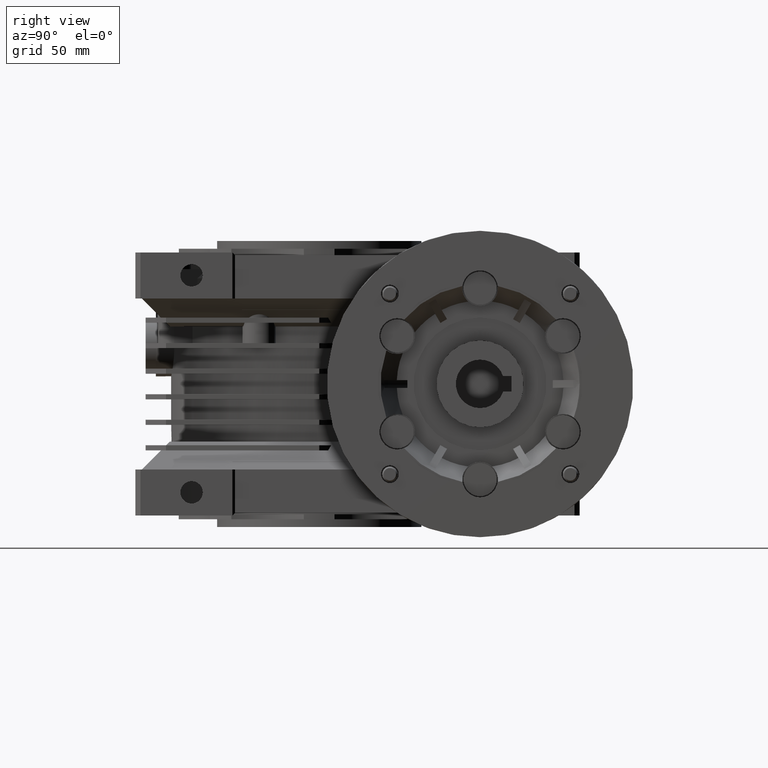
[diagram: clean part render]
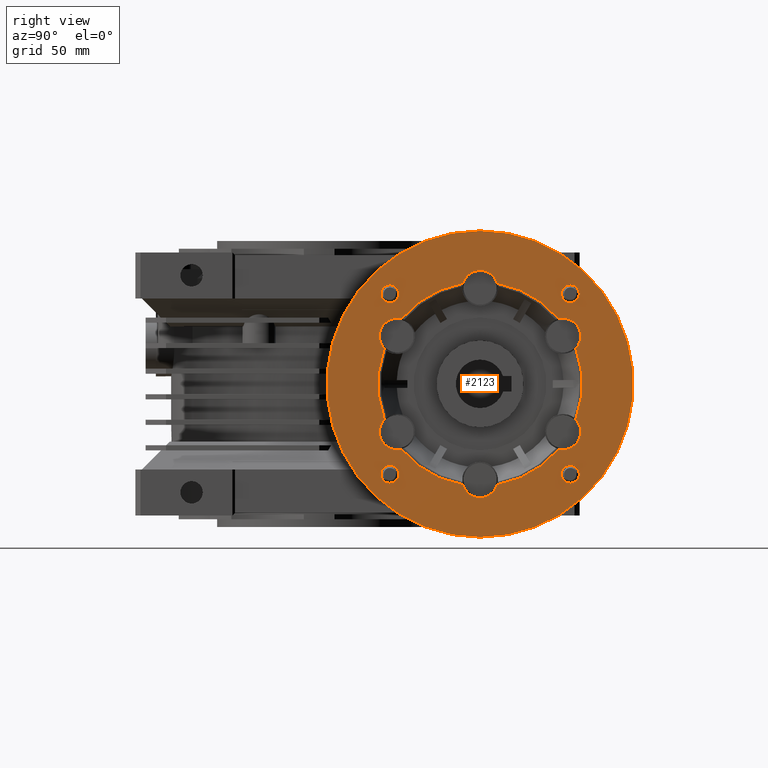
[diagram: same view with one face highlighted and labeled with its STEP entity id]
A machine part, right view. The second image highlights one B-rep face of the part: STEP entity #2123.
In plain terms, the highlighted planar face has unit normal (-1, 0, 0).
Its self-contained STEP definition (entity closure, byte-faithful):
#221 = CARTESIAN_POINT ( 'NONE',  ( 95.00000000000000000, 30.52404735808350011, 18.75000000000000000 ) ) ;
#666 = EDGE_CURVE ( 'NONE', #35912, #3638, #38942, .T. ) ;
#673 = EDGE_CURVE ( 'NONE', #39535, #11094, #6683, .T. ) ;
#696 = VERTEX_POINT ( 'NONE', #35260 ) ;
#842 = CARTESIAN_POINT ( 'NONE',  ( 95.00000000000000000, 27.64466094067254787, -35.35533905932929599 ) ) ;
#877 = DIRECTION ( 'NONE',  ( 1.000000000000000000, 0.000000000000000000, 0.000000000000000000 ) ) ;
#1205 = EDGE_CURVE ( 'NONE', #8564, #21819, #1447, .T. ) ;
#1235 = CARTESIAN_POINT ( 'NONE',  ( 95.00000000000000000, 98.35533905932729226, -35.35533905932745569 ) ) ;
#1238 = ORIENTED_EDGE ( 'NONE', *, *, #23950, .F. ) ;
#1447 = CIRCLE ( 'NONE', #5187, 40.00000000000000000 ) ;
#1826 = CARTESIAN_POINT ( 'NONE',  ( 95.00000000000000000, 27.64466094067070046, 35.35533905932544485 ) ) ;
#2123 = ADVANCED_FACE ( 'NONE', ( #27807, #32259, #35134, #38640, #17712, #6473 ), #28496, .F. ) ;
#2411 = CIRCLE ( 'NONE', #12105, 6.980000000000000426 ) ;
#3286 = CARTESIAN_POINT ( 'NONE',  ( 95.00000000000000000, 69.70679476516291118, 39.43372800000000211 ) ) ;
#3370 = AXIS2_PLACEMENT_3D ( 'NONE', #4584, #21753, #14448 ) ;
#3430 = CIRCLE ( 'NONE', #46158, 3.500000000002147171 ) ;
#3459 = AXIS2_PLACEMENT_3D ( 'NONE', #36403, #15240, #26275 ) ;
#3610 = CARTESIAN_POINT ( 'NONE',  ( 95.00000000000000000, 93.79721283134431076, 25.52511864459950175 ) ) ;
#3638 = VERTEX_POINT ( 'NONE', #15618 ) ;
#3765 = AXIS2_PLACEMENT_3D ( 'NONE', #13459, #42606, #13928 ) ;
#4121 = VERTEX_POINT ( 'NONE', #20230 ) ;
#4180 = CIRCLE ( 'NONE', #3459, 6.980000000000000426 ) ;
#4584 = CARTESIAN_POINT ( 'NONE',  ( 95.00000000000000000, 27.64466094067070046, 35.35533905932544485 ) ) ;
#5089 = DIRECTION ( 'NONE',  ( 1.000000000000000000, 0.000000000000000000, 0.000000000000000000 ) ) ;
#5187 = AXIS2_PLACEMENT_3D ( 'NONE', #33043, #877, #15170 ) ;
#5372 = CIRCLE ( 'NONE', #17397, 6.980000000000000426 ) ;
#5548 = EDGE_LOOP ( 'NONE', ( #15098, #20117 ) ) ;
#5630 = CARTESIAN_POINT ( 'NONE',  ( 95.00000000000000000, 25.49599240349279938, -13.90860935540045951 ) ) ;
#5686 = EDGE_CURVE ( 'NONE', #36456, #10763, #15268, .T. ) ;
#5832 = VERTEX_POINT ( 'NONE', #27195 ) ;
#5835 = AXIS2_PLACEMENT_3D ( 'NONE', #30579, #12687, #44889 ) ;
#6020 = DIRECTION ( 'NONE',  ( 0.000000000000000000, 0.000000000000000000, -1.000000000000000000 ) ) ;
#6115 = ORIENTED_EDGE ( 'NONE', *, *, #32455, .F. ) ;
#6122 = VERTEX_POINT ( 'NONE', #44204 ) ;
#6150 = AXIS2_PLACEMENT_3D ( 'NONE', #23211, #11899, #44816 ) ;
#6472 = AXIS2_PLACEMENT_3D ( 'NONE', #19267, #15251, #11501 ) ;
#6473 = FACE_OUTER_BOUND ( 'NONE', #5548, .T. ) ;
#6683 = CIRCLE ( 'NONE', #28419, 6.980000000000000426 ) ;
#6937 = ORIENTED_EDGE ( 'NONE', *, *, #10052, .F. ) ;
#7176 = CIRCLE ( 'NONE', #6472, 40.00000000000000000 ) ;
#7322 = DIRECTION ( 'NONE',  ( 1.000000000000000000, 0.000000000000000000, 0.000000000000000000 ) ) ;
#7582 = EDGE_CURVE ( 'NONE', #37058, #39535, #7176, .T. ) ;
#8200 = VERTEX_POINT ( 'NONE', #44917 ) ;
#8286 = VERTEX_POINT ( 'NONE', #23788 ) ;
#8336 = VERTEX_POINT ( 'NONE', #42332 ) ;
#8475 = DIRECTION ( 'NONE',  ( 1.000000000000000000, 0.000000000000000000, 0.000000000000000000 ) ) ;
#8564 = VERTEX_POINT ( 'NONE', #30047 ) ;
#8683 = CIRCLE ( 'NONE', #32714, 6.980000000000000426 ) ;
#9693 = EDGE_LOOP ( 'NONE', ( #1238, #42240 ) ) ;
#10000 = EDGE_CURVE ( 'NONE', #21819, #31890, #4180, .T. ) ;
#10052 = EDGE_CURVE ( 'NONE', #19549, #5832, #8683, .T. ) ;
#10274 = VERTEX_POINT ( 'NONE', #3286 ) ;
#10319 = DIRECTION ( 'NONE',  ( 1.000000000000000000, 0.000000000000000000, 0.000000000000000000 ) ) ;
#10329 = EDGE_CURVE ( 'NONE', #10274, #4121, #18502, .T. ) ;
#10600 = CIRCLE ( 'NONE', #6150, 3.500000000002147171 ) ;
#10672 = DIRECTION ( 'NONE',  ( 0.000000000000000000, 0.000000000000000000, -1.000000000000000000 ) ) ;
#10722 = AXIS2_PLACEMENT_3D ( 'NONE', #1235, #8475, #26322 ) ;
#10725 = DIRECTION ( 'NONE',  ( 0.000000000000000000, 0.000000000000000000, 1.000000000000000000 ) ) ;
#10763 = VERTEX_POINT ( 'NONE', #14838 ) ;
#11094 = VERTEX_POINT ( 'NONE', #21626 ) ;
#11163 = ORIENTED_EDGE ( 'NONE', *, *, #10329, .F. ) ;
#11501 = DIRECTION ( 'NONE',  ( 0.000000000000000000, 0.000000000000000000, 1.000000000000000000 ) ) ;
#11770 = EDGE_CURVE ( 'NONE', #18151, #36456, #32711, .T. ) ;
#11899 = DIRECTION ( 'NONE',  ( 1.000000000000000000, 0.000000000000000000, 0.000000000000000000 ) ) ;
#12072 = AXIS2_PLACEMENT_3D ( 'NONE', #17361, #46433, #10725 ) ;
#12105 = AXIS2_PLACEMENT_3D ( 'NONE', #25019, #42646, #10672 ) ;
#12320 = DIRECTION ( 'NONE',  ( 1.000000000000000000, 0.000000000000000000, 0.000000000000000000 ) ) ;
#12321 = VERTEX_POINT ( 'NONE', #45676 ) ;
#12443 = CIRCLE ( 'NONE', #39447, 40.00000000000000000 ) ;
#12654 = DIRECTION ( 'NONE',  ( 0.000000000000000000, 0.000000000000000000, -1.000000000000000000 ) ) ;
#12687 = DIRECTION ( 'NONE',  ( -1.000000000000000000, 0.000000000000000000, 0.000000000000000000 ) ) ;
#12789 = AXIS2_PLACEMENT_3D ( 'NONE', #38113, #20499, #13402 ) ;
#13088 = CARTESIAN_POINT ( 'NONE',  ( 95.00000000000000000, 63.00000000000000000, 0.000000000000000000 ) ) ;
#13402 = DIRECTION ( 'NONE',  ( 0.000000000000000000, 0.000000000000000000, -1.000000000000000000 ) ) ;
#13459 = CARTESIAN_POINT ( 'NONE',  ( 95.00000000000000000, 128.0000000000000000, 0.000000000000000000 ) ) ;
#13663 = ORIENTED_EDGE ( 'NONE', *, *, #11770, .F. ) ;
#13928 = DIRECTION ( 'NONE',  ( 0.000000000000000000, 0.000000000000000000, 1.000000000000000000 ) ) ;
#14287 = EDGE_CURVE ( 'NONE', #4121, #35912, #29246, .T. ) ;
#14448 = DIRECTION ( 'NONE',  ( 0.000000000000000000, 0.000000000000000000, -1.000000000000000000 ) ) ;
#14494 = CARTESIAN_POINT ( 'NONE',  ( 95.00000000000000000, 63.00000000000000000, 37.50000000000000000 ) ) ;
#14578 = DIRECTION ( 'NONE',  ( 0.000000000000000000, 1.734723475976807094E-15, 1.000000000000000000 ) ) ;
#14737 = EDGE_CURVE ( 'NONE', #6122, #14757, #41324, .T. ) ;
#14757 = VERTEX_POINT ( 'NONE', #35075 ) ;
#14838 = CARTESIAN_POINT ( 'NONE',  ( 95.00000000000000000, 69.70679476516281170, -39.43372800000000211 ) ) ;
#15098 = ORIENTED_EDGE ( 'NONE', *, *, #20862, .F. ) ;
#15170 = DIRECTION ( 'NONE',  ( 0.000000000000000000, 1.040834085586084257E-15, 1.000000000000000000 ) ) ;
#15240 = DIRECTION ( 'NONE',  ( 1.000000000000000000, 0.000000000000000000, 0.000000000000000000 ) ) ;
#15251 = DIRECTION ( 'NONE',  ( 1.000000000000000000, 0.000000000000000000, 0.000000000000000000 ) ) ;
#15259 = EDGE_CURVE ( 'NONE', #3638, #37058, #5372, .T. ) ;
#15268 = CIRCLE ( 'NONE', #31064, 6.980000000000000426 ) ;
#15372 = EDGE_CURVE ( 'NONE', #12321, #38858, #10600, .T. ) ;
#15503 = ORIENTED_EDGE ( 'NONE', *, *, #10000, .F. ) ;
#15618 = CARTESIAN_POINT ( 'NONE',  ( 95.00000000000000000, 30.52404735808350011, 25.73000000000000043 ) ) ;
#15624 = DIRECTION ( 'NONE',  ( 0.000000000000000000, 0.000000000000000000, -1.000000000000000000 ) ) ;
#15685 = VERTEX_POINT ( 'NONE', #28789 ) ;
#15949 = CARTESIAN_POINT ( 'NONE',  ( 95.00000000000000000, 95.47595264191639330, -18.75000000000000000 ) ) ;
#16048 = CARTESIAN_POINT ( 'NONE',  ( 95.00000000000000000, 32.20278716865569635, -25.52511864459950175 ) ) ;
#16321 = CARTESIAN_POINT ( 'NONE',  ( 95.00000000000000000, 63.00000000000000000, -60.00000000000000000 ) ) ;
#16786 = AXIS2_PLACEMENT_3D ( 'NONE', #41022, #12320, #15624 ) ;
#17249 = CARTESIAN_POINT ( 'NONE',  ( 95.00000000000000000, 56.29320523483710303, -39.43372800000000211 ) ) ;
#17361 = CARTESIAN_POINT ( 'NONE',  ( 95.00000000000000000, 63.00000000000000000, 0.000000000000000000 ) ) ;
#17397 = AXIS2_PLACEMENT_3D ( 'NONE', #221, #21811, #33082 ) ;
#17527 = DIRECTION ( 'NONE',  ( 0.000000000000000000, 0.000000000000000000, -1.000000000000000000 ) ) ;
#17623 = AXIS2_PLACEMENT_3D ( 'NONE', #13088, #20184, #20651 ) ;
#17712 = FACE_BOUND ( 'NONE', #18263, .T. ) ;
#17896 = ORIENTED_EDGE ( 'NONE', *, *, #15372, .F. ) ;
#17924 = VERTEX_POINT ( 'NONE', #3610 ) ;
#18151 = VERTEX_POINT ( 'NONE', #17249 ) ;
#18263 = EDGE_LOOP ( 'NONE', ( #17896, #34806 ) ) ;
#18384 = ORIENTED_EDGE ( 'NONE', *, *, #20105, .F. ) ;
#18502 = CIRCLE ( 'NONE', #31984, 6.980000000000000426 ) ;
#18556 = DIRECTION ( 'NONE',  ( 1.000000000000000000, 0.000000000000000000, 0.000000000000000000 ) ) ;
#19235 = VERTEX_POINT ( 'NONE', #16321 ) ;
#19237 = AXIS2_PLACEMENT_3D ( 'NONE', #41767, #31874, #42220 ) ;
#19267 = CARTESIAN_POINT ( 'NONE',  ( 95.00000000000000000, 63.00000000000000000, 0.000000000000000000 ) ) ;
#19272 = AXIS2_PLACEMENT_3D ( 'NONE', #1826, #5089, #30211 ) ;
#19391 = DIRECTION ( 'NONE',  ( 0.000000000000000000, 0.000000000000000000, -1.000000000000000000 ) ) ;
#19421 = CARTESIAN_POINT ( 'NONE',  ( 95.00000000000000000, 25.49599240349284912, 13.90860935540045951 ) ) ;
#19549 = VERTEX_POINT ( 'NONE', #28937 ) ;
#19621 = DIRECTION ( 'NONE',  ( 0.000000000000000000, 0.000000000000000000, 1.000000000000000000 ) ) ;
#19735 = CARTESIAN_POINT ( 'NONE',  ( 95.00000000000000000, 95.47595264191639330, -18.75000000000000000 ) ) ;
#19906 = CIRCLE ( 'NONE', #24391, 6.980000000000000426 ) ;
#20105 = EDGE_CURVE ( 'NONE', #5832, #8564, #19906, .T. ) ;
#20117 = ORIENTED_EDGE ( 'NONE', *, *, #46131, .F. ) ;
#20184 = DIRECTION ( 'NONE',  ( 1.000000000000000000, 0.000000000000000000, 0.000000000000000000 ) ) ;
#20230 = CARTESIAN_POINT ( 'NONE',  ( 95.00000000000000000, 56.29320523483710303, 39.43372800000000211 ) ) ;
#20499 = DIRECTION ( 'NONE',  ( 1.000000000000000000, 0.000000000000000000, 0.000000000000000000 ) ) ;
#20526 = CIRCLE ( 'NONE', #10722, 3.500000000000003109 ) ;
#20639 = CIRCLE ( 'NONE', #3370, 3.500000000001488143 ) ;
#20651 = DIRECTION ( 'NONE',  ( 0.000000000000000000, -1.734723475976807094E-15, 1.000000000000000000 ) ) ;
#20862 = EDGE_CURVE ( 'NONE', #19235, #696, #42336, .T. ) ;
#20925 = DIRECTION ( 'NONE',  ( 0.000000000000000000, 0.000000000000000000, -1.000000000000000000 ) ) ;
#20936 = DIRECTION ( 'NONE',  ( 1.000000000000000000, 0.000000000000000000, 0.000000000000000000 ) ) ;
#21292 = EDGE_CURVE ( 'NONE', #8200, #15685, #20639, .T. ) ;
#21626 = CARTESIAN_POINT ( 'NONE',  ( 95.00000000000000000, 30.52404735808350011, -25.73000000000000043 ) ) ;
#21753 = DIRECTION ( 'NONE',  ( 1.000000000000000000, 0.000000000000000000, 0.000000000000000000 ) ) ;
#21811 = DIRECTION ( 'NONE',  ( 1.000000000000000000, 0.000000000000000000, 0.000000000000000000 ) ) ;
#21819 = VERTEX_POINT ( 'NONE', #39764 ) ;
#22108 = CARTESIAN_POINT ( 'NONE',  ( 95.00000000000000000, 63.00000000000000000, 0.000000000000000000 ) ) ;
#22574 = ORIENTED_EDGE ( 'NONE', *, *, #14287, .F. ) ;
#23135 = CARTESIAN_POINT ( 'NONE',  ( 95.00000000000000000, 63.00000000000000000, 0.000000000000000000 ) ) ;
#23211 = CARTESIAN_POINT ( 'NONE',  ( 95.00000000000000000, 98.35533905932540222, 35.35533905932729937 ) ) ;
#23553 = CIRCLE ( 'NONE', #16786, 3.500000000000003109 ) ;
#23788 = CARTESIAN_POINT ( 'NONE',  ( 95.00000000000000000, 98.35533905932729226, -31.85533905932744858 ) ) ;
#23950 = EDGE_CURVE ( 'NONE', #14757, #6122, #34352, .T. ) ;
#24391 = AXIS2_PLACEMENT_3D ( 'NONE', #19735, #30291, #12654 ) ;
#24666 = CARTESIAN_POINT ( 'NONE',  ( 95.00000000000000000, 30.52404735808350011, 18.75000000000000000 ) ) ;
#24674 = AXIS2_PLACEMENT_3D ( 'NONE', #24666, #10319, #45804 ) ;
#24829 = ORIENTED_EDGE ( 'NONE', *, *, #5686, .F. ) ;
#25019 = CARTESIAN_POINT ( 'NONE',  ( 95.00000000000000000, 95.47595264191649278, 18.75000000000000000 ) ) ;
#25306 = CIRCLE ( 'NONE', #32789, 6.980000000000000426 ) ;
#25456 = ORIENTED_EDGE ( 'NONE', *, *, #21292, .F. ) ;
#25471 = CARTESIAN_POINT ( 'NONE',  ( 95.00000000000000000, 63.00000000000000000, -44.47999999999999687 ) ) ;
#26226 = EDGE_LOOP ( 'NONE', ( #27543, #25456 ) ) ;
#26275 = DIRECTION ( 'NONE',  ( 0.000000000000000000, 0.000000000000000000, -1.000000000000000000 ) ) ;
#26322 = DIRECTION ( 'NONE',  ( 0.000000000000000000, 0.000000000000000000, -1.000000000000000000 ) ) ;
#26486 = DIRECTION ( 'NONE',  ( 0.000000000000000000, 0.000000000000000000, -1.000000000000000000 ) ) ;
#26930 = CARTESIAN_POINT ( 'NONE',  ( 95.00000000000000000, 98.35533905932540222, 35.35533905932729937 ) ) ;
#27195 = CARTESIAN_POINT ( 'NONE',  ( 95.00000000000000000, 95.47595264191639330, -25.73000000000000043 ) ) ;
#27543 = ORIENTED_EDGE ( 'NONE', *, *, #39889, .F. ) ;
#27620 = DIRECTION ( 'NONE',  ( 1.000000000000000000, 0.000000000000000000, 0.000000000000000000 ) ) ;
#27807 = FACE_BOUND ( 'NONE', #37298, .T. ) ;
#28419 = AXIS2_PLACEMENT_3D ( 'NONE', #41833, #20936, #31266 ) ;
#28496 = PLANE ( 'NONE',  #3765 ) ;
#28789 = CARTESIAN_POINT ( 'NONE',  ( 95.00000000000000000, 27.64466094067070046, 31.85533905932395982 ) ) ;
#28937 = CARTESIAN_POINT ( 'NONE',  ( 95.00000000000000000, 93.79721283134431076, -25.52511864459955149 ) ) ;
#29246 = CIRCLE ( 'NONE', #44235, 40.00000000000000000 ) ;
#29299 = DIRECTION ( 'NONE',  ( 1.000000000000000000, 0.000000000000000000, 0.000000000000000000 ) ) ;
#30047 = CARTESIAN_POINT ( 'NONE',  ( 95.00000000000000000, 100.5040075965072077, -13.90860935540050036 ) ) ;
#30211 = DIRECTION ( 'NONE',  ( 0.000000000000000000, 0.000000000000000000, -1.000000000000000000 ) ) ;
#30291 = DIRECTION ( 'NONE',  ( 1.000000000000000000, 0.000000000000000000, 0.000000000000000000 ) ) ;
#30576 = EDGE_CURVE ( 'NONE', #8286, #8336, #20526, .T. ) ;
#30579 = CARTESIAN_POINT ( 'NONE',  ( 95.00000000000000000, 63.00000000000000000, 0.000000000000000000 ) ) ;
#30614 = DIRECTION ( 'NONE',  ( -1.000000000000000000, 0.000000000000000000, 0.000000000000000000 ) ) ;
#31064 = AXIS2_PLACEMENT_3D ( 'NONE', #33304, #29299, #26486 ) ;
#31266 = DIRECTION ( 'NONE',  ( 0.000000000000000000, 0.000000000000000000, -1.000000000000000000 ) ) ;
#31279 = EDGE_CURVE ( 'NONE', #8336, #8286, #23553, .T. ) ;
#31744 = EDGE_CURVE ( 'NONE', #10763, #19549, #38380, .T. ) ;
#31844 = ORIENTED_EDGE ( 'NONE', *, *, #43686, .F. ) ;
#31874 = DIRECTION ( 'NONE',  ( 1.000000000000000000, 0.000000000000000000, 0.000000000000000000 ) ) ;
#31890 = VERTEX_POINT ( 'NONE', #35111 ) ;
#31984 = AXIS2_PLACEMENT_3D ( 'NONE', #14494, #43166, #39639 ) ;
#32011 = ORIENTED_EDGE ( 'NONE', *, *, #673, .F. ) ;
#32018 = CIRCLE ( 'NONE', #19272, 3.500000000001488143 ) ;
#32259 = FACE_BOUND ( 'NONE', #45931, .T. ) ;
#32455 = EDGE_CURVE ( 'NONE', #31890, #17924, #2411, .T. ) ;
#32711 = CIRCLE ( 'NONE', #19237, 6.980000000000000426 ) ;
#32714 = AXIS2_PLACEMENT_3D ( 'NONE', #15949, #18556, #33588 ) ;
#32789 = AXIS2_PLACEMENT_3D ( 'NONE', #38208, #27620, #17527 ) ;
#32941 = ORIENTED_EDGE ( 'NONE', *, *, #666, .F. ) ;
#33043 = CARTESIAN_POINT ( 'NONE',  ( 95.00000000000000000, 63.00000000000000000, 0.000000000000000000 ) ) ;
#33082 = DIRECTION ( 'NONE',  ( 0.000000000000000000, 0.000000000000000000, -1.000000000000000000 ) ) ;
#33237 = DIRECTION ( 'NONE',  ( 1.000000000000000000, 0.000000000000000000, 0.000000000000000000 ) ) ;
#33304 = CARTESIAN_POINT ( 'NONE',  ( 95.00000000000000000, 63.00000000000000000, -37.50000000000000000 ) ) ;
#33588 = DIRECTION ( 'NONE',  ( 0.000000000000000000, 0.000000000000000000, -1.000000000000000000 ) ) ;
#34352 = CIRCLE ( 'NONE', #36571, 3.499999999999510614 ) ;
#34806 = ORIENTED_EDGE ( 'NONE', *, *, #37285, .F. ) ;
#35075 = CARTESIAN_POINT ( 'NONE',  ( 95.00000000000000000, 27.64466094067254787, -38.85533905932880572 ) ) ;
#35111 = CARTESIAN_POINT ( 'NONE',  ( 95.00000000000000000, 95.47595264191649278, 25.73000000000000043 ) ) ;
#35134 = FACE_BOUND ( 'NONE', #9693, .T. ) ;
#35149 = ORIENTED_EDGE ( 'NONE', *, *, #37944, .F. ) ;
#35260 = CARTESIAN_POINT ( 'NONE',  ( 95.00000000000000000, 63.00000000000001421, 60.00000000000000000 ) ) ;
#35912 = VERTEX_POINT ( 'NONE', #43140 ) ;
#36403 = CARTESIAN_POINT ( 'NONE',  ( 95.00000000000000000, 95.47595264191649278, 18.75000000000000000 ) ) ;
#36456 = VERTEX_POINT ( 'NONE', #25471 ) ;
#36571 = AXIS2_PLACEMENT_3D ( 'NONE', #842, #33237, #19391 ) ;
#36869 = ORIENTED_EDGE ( 'NONE', *, *, #15259, .F. ) ;
#37047 = AXIS2_PLACEMENT_3D ( 'NONE', #42719, #30614, #20925 ) ;
#37058 = VERTEX_POINT ( 'NONE', #19421 ) ;
#37285 = EDGE_CURVE ( 'NONE', #38858, #12321, #3430, .T. ) ;
#37298 = EDGE_LOOP ( 'NONE', ( #6937, #40266, #24829, #13663, #35149, #45623, #32011, #41296, #36869, #32941, #22574, #11163, #31844, #6115, #15503, #46245, #18384 ) ) ;
#37462 = DIRECTION ( 'NONE',  ( 1.000000000000000000, 0.000000000000000000, 0.000000000000000000 ) ) ;
#37604 = VERTEX_POINT ( 'NONE', #16048 ) ;
#37864 = CIRCLE ( 'NONE', #17623, 40.00000000000000000 ) ;
#37944 = EDGE_CURVE ( 'NONE', #37604, #18151, #12443, .T. ) ;
#38113 = CARTESIAN_POINT ( 'NONE',  ( 95.00000000000000000, 27.64466094067254787, -35.35533905932929599 ) ) ;
#38200 = DIRECTION ( 'NONE',  ( 1.000000000000000000, 0.000000000000000000, 0.000000000000000000 ) ) ;
#38208 = CARTESIAN_POINT ( 'NONE',  ( 95.00000000000000000, 30.52404735808350011, -18.75000000000000000 ) ) ;
#38380 = CIRCLE ( 'NONE', #12072, 40.00000000000000000 ) ;
#38434 = ORIENTED_EDGE ( 'NONE', *, *, #31279, .F. ) ;
#38566 = ORIENTED_EDGE ( 'NONE', *, *, #30576, .F. ) ;
#38640 = FACE_BOUND ( 'NONE', #26226, .T. ) ;
#38858 = VERTEX_POINT ( 'NONE', #41905 ) ;
#38942 = CIRCLE ( 'NONE', #24674, 6.980000000000000426 ) ;
#39447 = AXIS2_PLACEMENT_3D ( 'NONE', #22108, #7322, #14578 ) ;
#39535 = VERTEX_POINT ( 'NONE', #5630 ) ;
#39639 = DIRECTION ( 'NONE',  ( 0.000000000000000000, 0.000000000000000000, -1.000000000000000000 ) ) ;
#39764 = CARTESIAN_POINT ( 'NONE',  ( 95.00000000000000000, 100.5040075965072077, 13.90860935540045951 ) ) ;
#39889 = EDGE_CURVE ( 'NONE', #15685, #8200, #32018, .T. ) ;
#40155 = EDGE_CURVE ( 'NONE', #11094, #37604, #25306, .T. ) ;
#40266 = ORIENTED_EDGE ( 'NONE', *, *, #31744, .F. ) ;
#41022 = CARTESIAN_POINT ( 'NONE',  ( 95.00000000000000000, 98.35533905932729226, -35.35533905932745569 ) ) ;
#41296 = ORIENTED_EDGE ( 'NONE', *, *, #7582, .F. ) ;
#41324 = CIRCLE ( 'NONE', #12789, 3.499999999999510614 ) ;
#41767 = CARTESIAN_POINT ( 'NONE',  ( 95.00000000000000000, 63.00000000000000000, -37.50000000000000000 ) ) ;
#41833 = CARTESIAN_POINT ( 'NONE',  ( 95.00000000000000000, 30.52404735808350011, -18.75000000000000000 ) ) ;
#41905 = CARTESIAN_POINT ( 'NONE',  ( 95.00000000000000000, 98.35533905932540222, 38.85533905932944521 ) ) ;
#42220 = DIRECTION ( 'NONE',  ( 0.000000000000000000, 0.000000000000000000, -1.000000000000000000 ) ) ;
#42240 = ORIENTED_EDGE ( 'NONE', *, *, #14737, .F. ) ;
#42332 = CARTESIAN_POINT ( 'NONE',  ( 95.00000000000000000, 98.35533905932729226, -38.85533905932745569 ) ) ;
#42336 = CIRCLE ( 'NONE', #37047, 60.00000000000000000 ) ;
#42606 = DIRECTION ( 'NONE',  ( -1.000000000000000000, 0.000000000000000000, 0.000000000000000000 ) ) ;
#42646 = DIRECTION ( 'NONE',  ( 1.000000000000000000, 0.000000000000000000, 0.000000000000000000 ) ) ;
#42719 = CARTESIAN_POINT ( 'NONE',  ( 95.00000000000000000, 63.00000000000000000, 0.000000000000000000 ) ) ;
#43140 = CARTESIAN_POINT ( 'NONE',  ( 95.00000000000000000, 32.20278716865569635, 25.52511864459950175 ) ) ;
#43166 = DIRECTION ( 'NONE',  ( 1.000000000000000000, 0.000000000000000000, 0.000000000000000000 ) ) ;
#43686 = EDGE_CURVE ( 'NONE', #17924, #10274, #37864, .T. ) ;
#44047 = CIRCLE ( 'NONE', #5835, 60.00000000000000000 ) ;
#44204 = CARTESIAN_POINT ( 'NONE',  ( 95.00000000000000000, 27.64466094067254787, -31.85533905932978627 ) ) ;
#44235 = AXIS2_PLACEMENT_3D ( 'NONE', #23135, #37462, #19621 ) ;
#44816 = DIRECTION ( 'NONE',  ( 0.000000000000000000, 0.000000000000000000, -1.000000000000000000 ) ) ;
#44889 = DIRECTION ( 'NONE',  ( 0.000000000000000000, 0.000000000000000000, -1.000000000000000000 ) ) ;
#44917 = CARTESIAN_POINT ( 'NONE',  ( 95.00000000000000000, 27.64466094067070046, 38.85533905932693699 ) ) ;
#45623 = ORIENTED_EDGE ( 'NONE', *, *, #40155, .F. ) ;
#45676 = CARTESIAN_POINT ( 'NONE',  ( 95.00000000000000000, 98.35533905932540222, 31.85533905932515353 ) ) ;
#45804 = DIRECTION ( 'NONE',  ( 0.000000000000000000, 0.000000000000000000, -1.000000000000000000 ) ) ;
#45931 = EDGE_LOOP ( 'NONE', ( #38434, #38566 ) ) ;
#46131 = EDGE_CURVE ( 'NONE', #696, #19235, #44047, .T. ) ;
#46158 = AXIS2_PLACEMENT_3D ( 'NONE', #26930, #38200, #6020 ) ;
#46245 = ORIENTED_EDGE ( 'NONE', *, *, #1205, .F. ) ;
#46433 = DIRECTION ( 'NONE',  ( 1.000000000000000000, 0.000000000000000000, 0.000000000000000000 ) ) ;